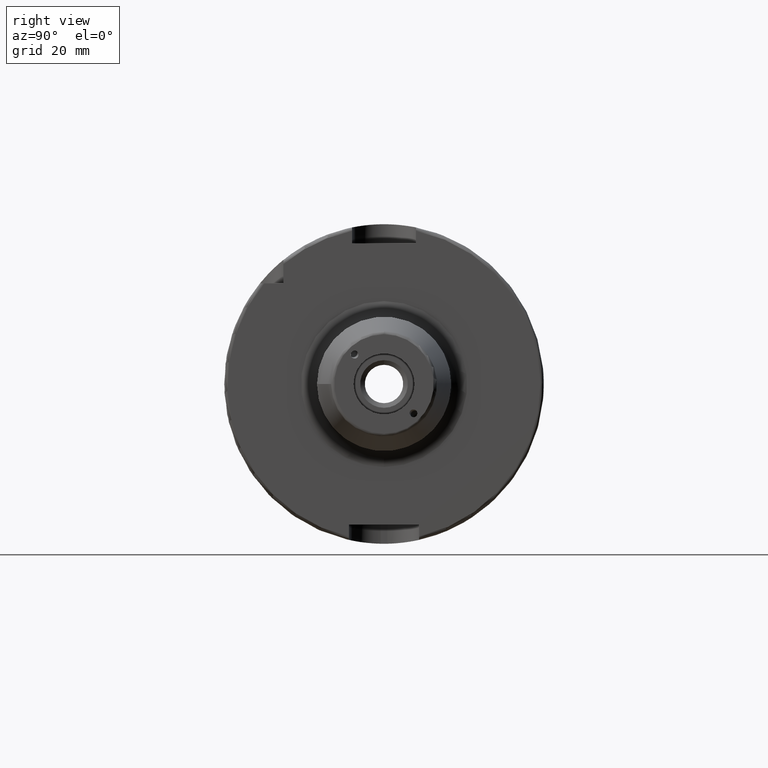
[diagram: clean part render]
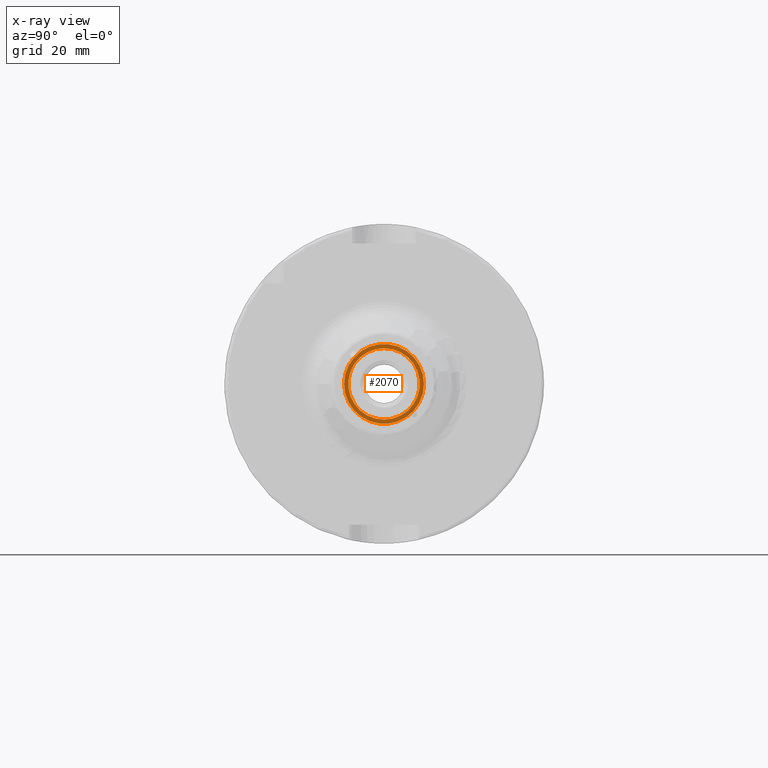
[diagram: x-ray — body ghosted, one internal face saturated and labeled with its STEP entity id]
A machine part, right view, then the same camera in x-ray: the body is ghosted and one INTERNAL B-rep face — a face not visible from any outside direction — is saturated and labeled: STEP entity #2070.
In plain terms, the highlighted planar face has unit normal (-1, 0, 0).
Its self-contained STEP definition (entity closure, byte-faithful):
#95=FACE_BOUND('',#438,.T.);
#131=PLANE('',#2329);
#308=FACE_OUTER_BOUND('',#437,.T.);
#437=EDGE_LOOP('',(#1871));
#438=EDGE_LOOP('',(#1872));
#776=CIRCLE('',#2320,11.188101);
#781=CIRCLE('',#2328,12.5);
#991=VERTEX_POINT('',#4436);
#995=VERTEX_POINT('',#4449);
#1289=EDGE_CURVE('',#991,#991,#776,.T.);
#1295=EDGE_CURVE('',#995,#995,#781,.T.);
#1871=ORIENTED_EDGE('',*,*,#1295,.F.);
#1872=ORIENTED_EDGE('',*,*,#1289,.T.);
#2070=ADVANCED_FACE('',(#308,#95),#131,.F.);
#2320=AXIS2_PLACEMENT_3D('',#4438,#2887,#2888);
#2328=AXIS2_PLACEMENT_3D('',#4451,#2904,#2905);
#2329=AXIS2_PLACEMENT_3D('',#4452,#2906,#2907);
#2887=DIRECTION('center_axis',(-1.,0.,0.));
#2888=DIRECTION('ref_axis',(0.,0.,1.));
#2904=DIRECTION('center_axis',(-1.,0.,0.));
#2905=DIRECTION('ref_axis',(0.,0.,1.));
#2906=DIRECTION('center_axis',(-1.,0.,0.));
#2907=DIRECTION('ref_axis',(0.,0.,1.));
#4436=CARTESIAN_POINT('',(22.5,-1.37014720781873E-15,-11.188101));
#4438=CARTESIAN_POINT('Origin',(22.5,0.,0.));
#4449=CARTESIAN_POINT('',(22.5,-12.5,1.53080849893419E-15));
#4451=CARTESIAN_POINT('Origin',(22.5,0.,0.));
#4452=CARTESIAN_POINT('Origin',(22.5,10.,0.));